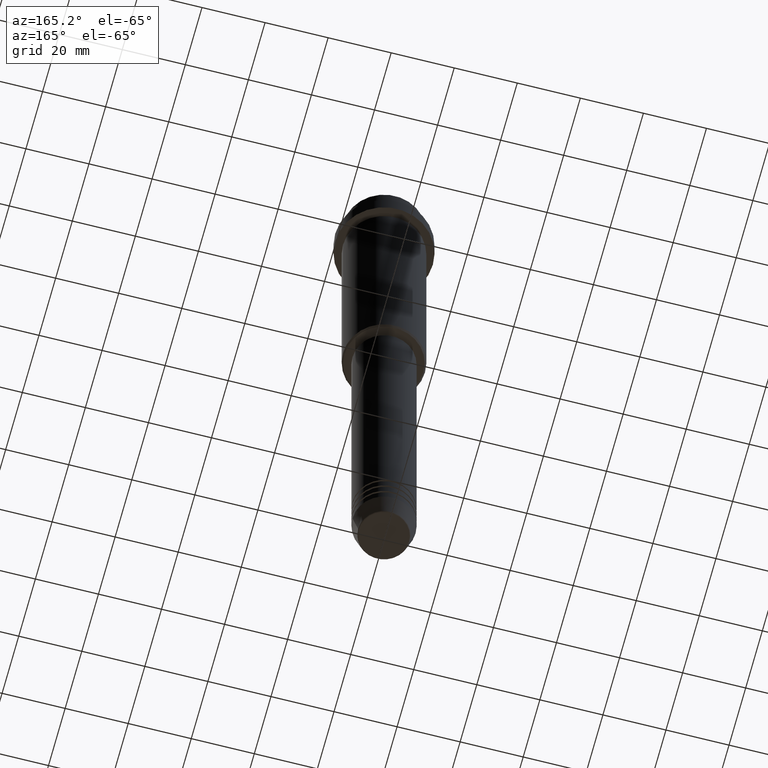
[diagram: clean part render]
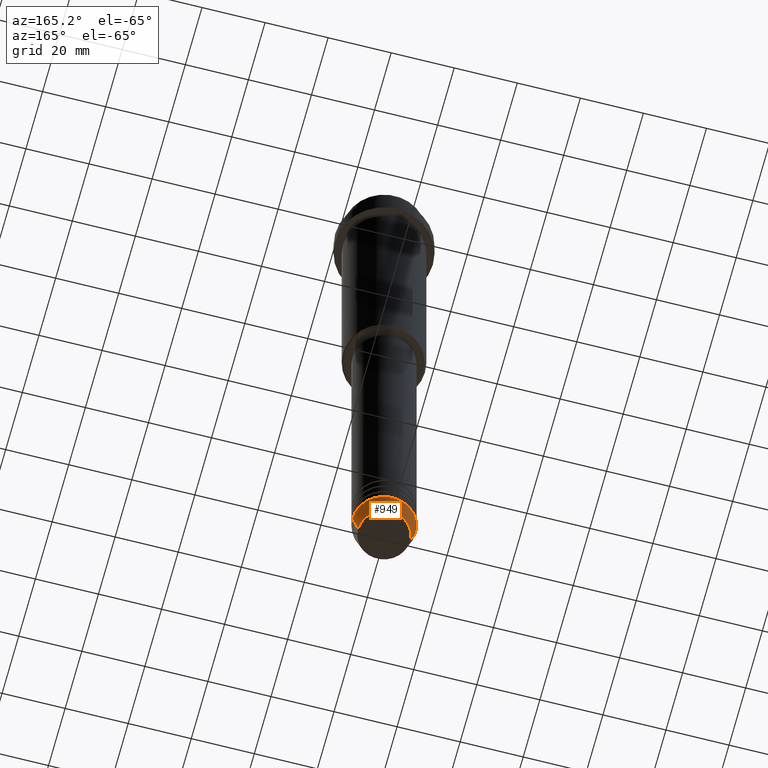
[diagram: same view with one face highlighted and labeled with its STEP entity id]
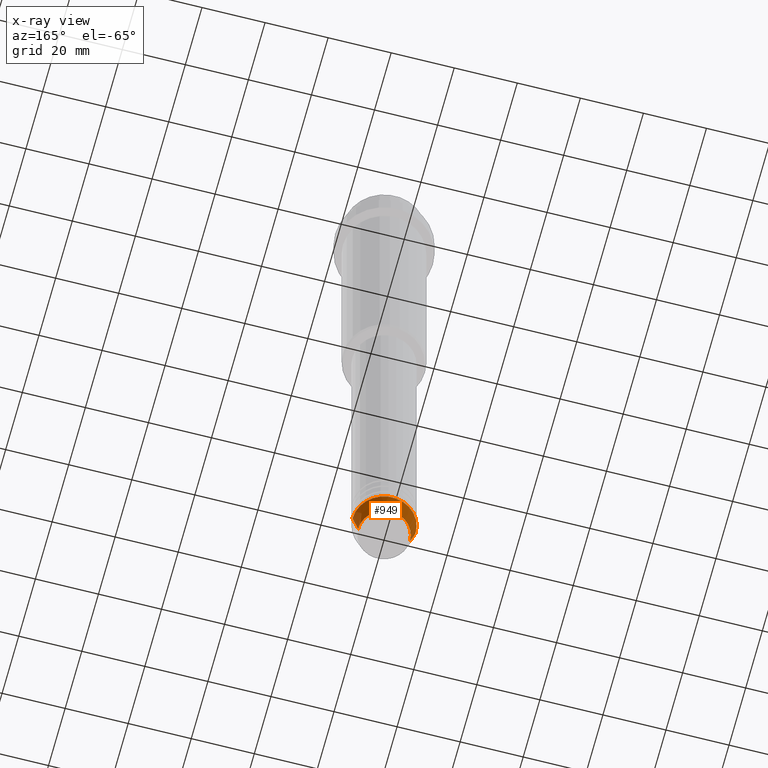
[diagram: x-ray of the same camera — body ghosted, the highlighted face saturated]
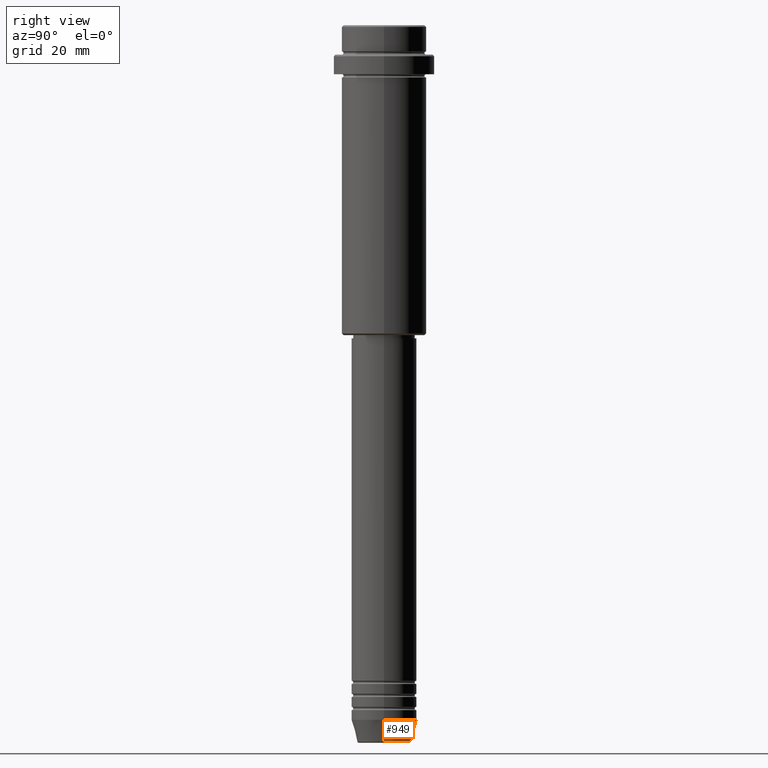
[diagram: same view with one face highlighted and labeled with its STEP entity id]
A machine part, auxiliary view. The second image highlights one B-rep face of the part: STEP entity #949.
The next image is the same camera in x-ray: the body ghosted, the highlighted face saturated — about 0% of this face is hidden behind the body in this view.
A second angle (right view) of the same face is appended — the face is thin or edge-on in the first view.
In plain terms, the highlighted conical surface has half-angle 15 deg.
Its self-contained STEP definition (entity closure, byte-faithful):
#12 = CARTESIAN_POINT ( 'NONE',  ( -8.223655072137189492, 1.115877042642911856E-15, -219.6294095225512137 ) ) ;
#19 = ORIENTED_EDGE ( 'NONE', *, *, #51, .T. ) ;
#51 = EDGE_CURVE ( 'NONE', #1079, #778, #403, .T. ) ;
#69 = AXIS2_PLACEMENT_3D ( 'NONE', #1036, #506, #516 ) ;
#171 = CARTESIAN_POINT ( 'NONE',  ( 0.000000000000000000, 0.000000000000000000, -219.6294095225512137 ) ) ;
#331 = VECTOR ( 'NONE', #1106, 1000.000000000000114 ) ;
#398 = FACE_OUTER_BOUND ( 'NONE', #569, .T. ) ;
#403 = CIRCLE ( 'NONE', #754, 8.223655072137189492 ) ;
#409 = DIRECTION ( 'NONE',  ( 1.000000000000000000, 0.000000000000000000, 0.000000000000000000 ) ) ;
#478 = CARTESIAN_POINT ( 'NONE',  ( 10.00000000000000000, 0.000000000000000000, -212.9999999999999716 ) ) ;
#490 = AXIS2_PLACEMENT_3D ( 'NONE', #825, #1387, #409 ) ;
#506 = DIRECTION ( 'NONE',  ( -0.000000000000000000, -0.000000000000000000, 1.000000000000000000 ) ) ;
#516 = DIRECTION ( 'NONE',  ( 1.000000000000000000, 0.000000000000000000, 0.000000000000000000 ) ) ;
#524 = EDGE_CURVE ( 'NONE', #1359, #1352, #1307, .T. ) ;
#536 = LINE ( 'NONE', #761, #978 ) ;
#551 = DIRECTION ( 'NONE',  ( 1.000000000000000000, 0.000000000000000000, 0.000000000000000000 ) ) ;
#569 = EDGE_LOOP ( 'NONE', ( #19, #1033, #760, #1103 ) ) ;
#622 = EDGE_CURVE ( 'NONE', #1079, #1359, #536, .T. ) ;
#670 = CARTESIAN_POINT ( 'NONE',  ( -10.00000000000000000, 1.224646799147353256E-15, -212.9999999999999716 ) ) ;
#754 = AXIS2_PLACEMENT_3D ( 'NONE', #171, #1182, #551 ) ;
#760 = ORIENTED_EDGE ( 'NONE', *, *, #524, .F. ) ;
#761 = CARTESIAN_POINT ( 'NONE',  ( 10.00000000000000000, 0.000000000000000000, -212.9999999999999716 ) ) ;
#778 = VERTEX_POINT ( 'NONE', #12 ) ;
#825 = CARTESIAN_POINT ( 'NONE',  ( 0.000000000000000000, 0.000000000000000000, -212.9999999999999716 ) ) ;
#949 = ADVANCED_FACE ( 'NONE', ( #398 ), #1004, .T. ) ;
#978 = VECTOR ( 'NONE', #1411, 1000.000000000000114 ) ;
#1004 = CONICAL_SURFACE ( 'NONE', #490, 10.00000000000000000, 0.2617993877991502405 ) ;
#1033 = ORIENTED_EDGE ( 'NONE', *, *, #1137, .T. ) ;
#1036 = CARTESIAN_POINT ( 'NONE',  ( 0.000000000000000000, 0.000000000000000000, -212.9999999999999716 ) ) ;
#1079 = VERTEX_POINT ( 'NONE', #1309 ) ;
#1103 = ORIENTED_EDGE ( 'NONE', *, *, #622, .F. ) ;
#1106 = DIRECTION ( 'NONE',  ( -0.2588190451025214611, 3.169619151431774186E-17, 0.9659258262890679791 ) ) ;
#1137 = EDGE_CURVE ( 'NONE', #778, #1352, #1221, .T. ) ;
#1182 = DIRECTION ( 'NONE',  ( -0.000000000000000000, -0.000000000000000000, 1.000000000000000000 ) ) ;
#1221 = LINE ( 'NONE', #670, #331 ) ;
#1307 = CIRCLE ( 'NONE', #69, 10.00000000000000000 ) ;
#1309 = CARTESIAN_POINT ( 'NONE',  ( 8.223655072137189492, 0.000000000000000000, -219.6294095225512137 ) ) ;
#1352 = VERTEX_POINT ( 'NONE', #1376 ) ;
#1359 = VERTEX_POINT ( 'NONE', #478 ) ;
#1376 = CARTESIAN_POINT ( 'NONE',  ( -10.00000000000000000, 1.224646799147353256E-15, -212.9999999999999716 ) ) ;
#1387 = DIRECTION ( 'NONE',  ( -0.000000000000000000, -0.000000000000000000, 1.000000000000000000 ) ) ;
#1411 = DIRECTION ( 'NONE',  ( 0.2588190451025214611, 0.000000000000000000, 0.9659258262890679791 ) ) ;